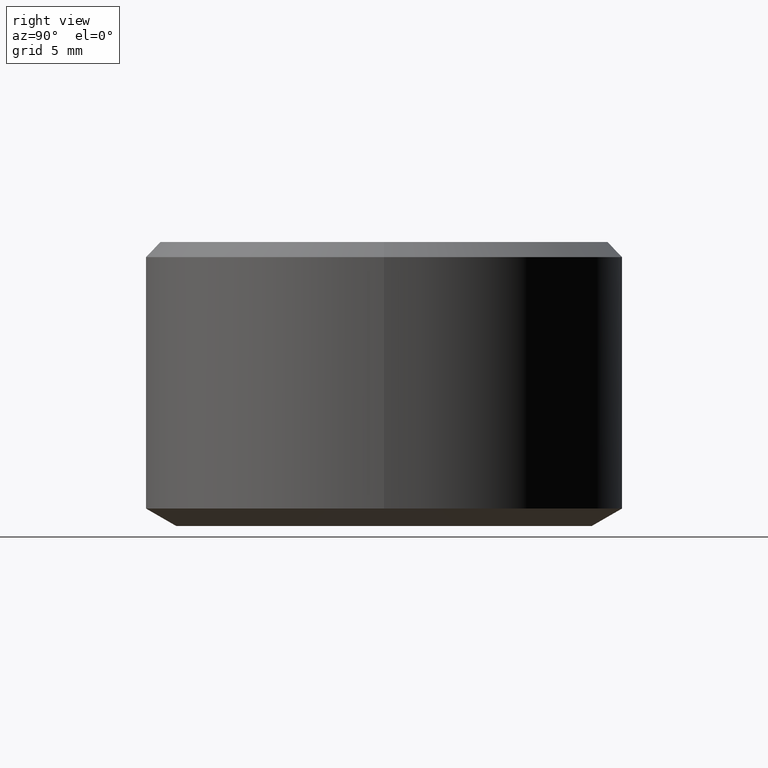
[diagram: clean part render]
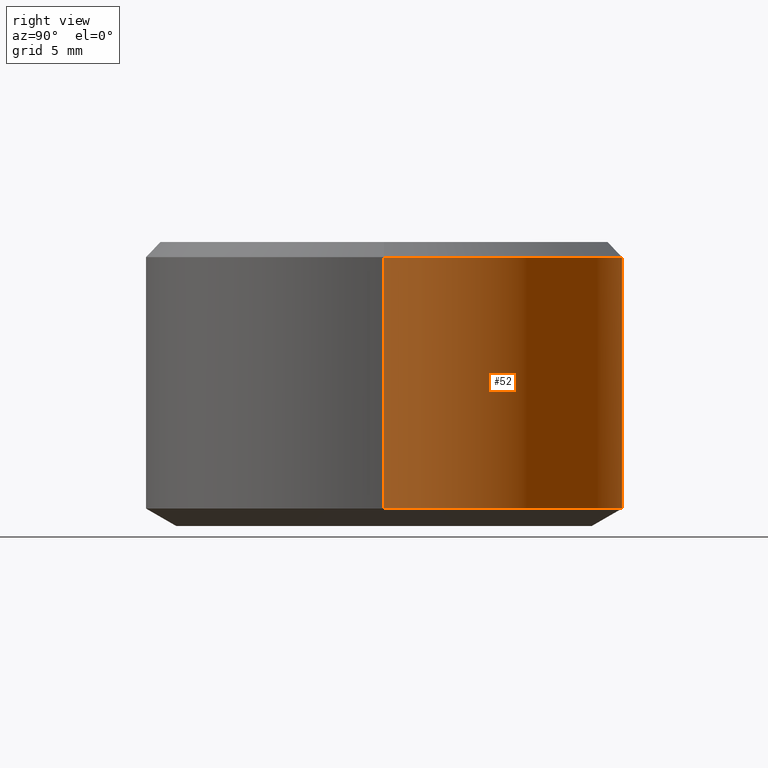
[diagram: same view with one face highlighted and labeled with its STEP entity id]
A machine part, right view. The second image highlights one B-rep face of the part: STEP entity #52.
In plain terms, the highlighted cylindrical surface (partial cylindrical patch) has radius 9.5 mm, axis along (-0, -0, 1).
Its self-contained STEP definition (entity closure, byte-faithful):
#10 = CARTESIAN_POINT ( 'NONE',  ( 0.0000000000000000000, 0.0000000000000000000, 0.6928203230271989800 ) ) ;
#22 = LINE ( 'NONE', #310, #302 ) ;
#23 = EDGE_CURVE ( 'NONE', #284, #342, #277, .T. ) ;
#52 = ADVANCED_FACE ( 'NONE', ( #151 ), #329, .T. ) ;
#58 = CARTESIAN_POINT ( 'NONE',  ( 9.500000000000008900, 0.0000000000000000000, 10.69999999999993200 ) ) ;
#64 = ORIENTED_EDGE ( 'NONE', *, *, #308, .F. ) ;
#80 = DIRECTION ( 'NONE',  ( 1.000000000000000000, 0.0000000000000000000, 0.0000000000000000000 ) ) ;
#82 = DIRECTION ( 'NONE',  ( -0.0000000000000000000, -0.0000000000000000000, 1.000000000000000000 ) ) ;
#125 = CARTESIAN_POINT ( 'NONE',  ( 9.500000000000008900, 0.0000000000000000000, 0.6928203230271989800 ) ) ;
#151 = FACE_OUTER_BOUND ( 'NONE', #221, .T. ) ;
#156 = AXIS2_PLACEMENT_3D ( 'NONE', #10, #270, #194 ) ;
#173 = ORIENTED_EDGE ( 'NONE', *, *, #23, .T. ) ;
#182 = VECTOR ( 'NONE', #82, 1000.000000000000000 ) ;
#193 = DIRECTION ( 'NONE',  ( 1.000000000000000000, 0.0000000000000000000, 0.0000000000000000000 ) ) ;
#194 = DIRECTION ( 'NONE',  ( 1.000000000000000000, 0.0000000000000000000, 0.0000000000000000000 ) ) ;
#198 = CARTESIAN_POINT ( 'NONE',  ( -9.500000000000008900, 1.163414459189986700E-015, 54.19208278002274400 ) ) ;
#208 = CARTESIAN_POINT ( 'NONE',  ( -9.500000000000008900, 1.163414459189986700E-015, 10.69999999999993200 ) ) ;
#218 = DIRECTION ( 'NONE',  ( -0.0000000000000000000, -0.0000000000000000000, 1.000000000000000000 ) ) ;
#221 = EDGE_LOOP ( 'NONE', ( #173, #231, #338, #64 ) ) ;
#223 = AXIS2_PLACEMENT_3D ( 'NONE', #315, #218, #193 ) ;
#225 = AXIS2_PLACEMENT_3D ( 'NONE', #287, #312, #80 ) ;
#230 = EDGE_CURVE ( 'NONE', #342, #276, #242, .T. ) ;
#231 = ORIENTED_EDGE ( 'NONE', *, *, #230, .T. ) ;
#233 = CIRCLE ( 'NONE', #225, 9.500000000000008900 ) ;
#240 = EDGE_CURVE ( 'NONE', #288, #276, #233, .T. ) ;
#242 = LINE ( 'NONE', #198, #182 ) ;
#270 = DIRECTION ( 'NONE',  ( -0.0000000000000000000, -0.0000000000000000000, 1.000000000000000000 ) ) ;
#276 = VERTEX_POINT ( 'NONE', #208 ) ;
#277 = CIRCLE ( 'NONE', #156, 9.500000000000008900 ) ;
#284 = VERTEX_POINT ( 'NONE', #125 ) ;
#287 = CARTESIAN_POINT ( 'NONE',  ( 0.0000000000000000000, 0.0000000000000000000, 10.69999999999993200 ) ) ;
#288 = VERTEX_POINT ( 'NONE', #58 ) ;
#302 = VECTOR ( 'NONE', #335, 1000.000000000000000 ) ;
#308 = EDGE_CURVE ( 'NONE', #284, #288, #22, .T. ) ;
#310 = CARTESIAN_POINT ( 'NONE',  ( 9.500000000000008900, 0.0000000000000000000, 54.19208278002274400 ) ) ;
#312 = DIRECTION ( 'NONE',  ( -0.0000000000000000000, -0.0000000000000000000, 1.000000000000000000 ) ) ;
#315 = CARTESIAN_POINT ( 'NONE',  ( 0.0000000000000000000, 0.0000000000000000000, 54.19208278002274400 ) ) ;
#329 = CYLINDRICAL_SURFACE ( 'NONE', #223, 9.500000000000008900 ) ;
#332 = CARTESIAN_POINT ( 'NONE',  ( -9.500000000000008900, 1.163414459189986700E-015, 0.6928203230271989800 ) ) ;
#335 = DIRECTION ( 'NONE',  ( -0.0000000000000000000, -0.0000000000000000000, 1.000000000000000000 ) ) ;
#338 = ORIENTED_EDGE ( 'NONE', *, *, #240, .F. ) ;
#342 = VERTEX_POINT ( 'NONE', #332 ) ;